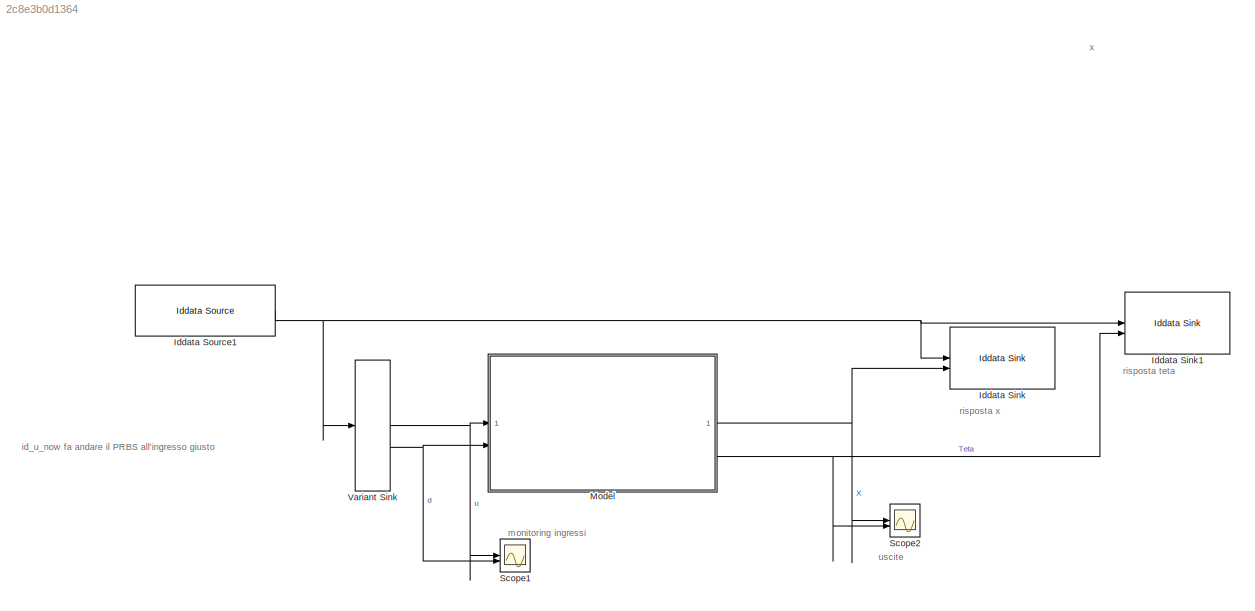
MODEL slx_2c8e3b0d1364
KIND model
CONFIG AbsTol = auto
CONFIG EnableMultiTasking = off
CONFIG FixedStep = auto
CONFIG MaxStep = auto
CONFIG MinStep = auto
CONFIG RelTol = 1e-3
CONFIG SampleTimeConstraint = Unconstrained
CONFIG SolverName = ode45
CONFIG StartTime = 0.0
CONFIG StopTime = 20
BLOCK [Reference] Iddata Sink  REF=slident/Iddata Sink  (lib defined in mdl_f7d4911ca73a)
  SourceBlock = slident/Iddata Sink
  SourceType = IDDATA Sink
BLOCK [Reference] Iddata Sink1  REF=slident/Iddata Sink  (lib defined in mdl_f7d4911ca73a)
  SourceBlock = slident/Iddata Sink
  SourceType = IDDATA Sink
BLOCK [Reference] Iddata Source1  REF=slident/Iddata Source  (lib defined in mdl_f7d4911ca73a)
  SourceBlock = slident/Iddata Source
  SourceType = Iddata InputOutput
BLOCK [ModelReference] Model
  ModelNameDialog = sistema_con_reazione_stato.slx
  ModelReferenceVersion = 9.55
BLOCK [Scope] Scope1
  ActiveDisplayString = 2
  ActiveDisplayYMaximum = 1.25
  ActiveDisplayYMinimum = -1.25
  DataLoggingVariableName = ScopeData1
  Floating = off
  GraphicalSettings = {"AxesScalingProperties":{"AlignXAxis":"Center","AlignYAxis":"Center","AutoScaleXAxisLimits":false,"AxesScaling":"Manual","AxesScalingNumUpdates":10,"ExpandOnly":true,"ScaleAxesLimitsAtStop":false,"XAxisDataRange":100,"YAxisDataRange":80},"DisplayProperties":{"ColorOrder":["auto","auto","auto","auto","auto","auto","auto","auto","auto","auto","auto","auto","auto","auto","auto","auto","auto","auto",...<+2247ch>
  LayoutDimensionsString = [2, 1]
  MultipleDisplayCache = [{"MaxYLimMag":1,"MaxYLimReal":1,"MinYLimMag":0,"MinYLimReal":-1,"PlotAsMagnitudePhase":false,"ShowGrid":true,"ShowLegend":true,"Title":"%<SignalLabel>","YLabel":""},{"MaxYLimMag":1.25,"MaxYLimReal":1.25,"MinYLimMag":0,"MinYLimReal":-1.25,"PlotAsMagnitudePhase":false,"ShowGrid":true,"ShowLegend":true,"Title":"%<SignalLabel>","YLabel":""}]
  NumInputPorts = 2
  ScopeFrameLocation = window
  ShowLegend = on
  WasSavedAsWebScope = on
  WindowPosition = [403.000000,285.000000,560.000000,420.000000,]
BLOCK [Scope] Scope2
  ActiveDisplayString = 2
  ActiveDisplayYMaximum = 0.044991800627960682
  ActiveDisplayYMinimum = -0.060113003787620641
  DataLoggingVariableName = ScopeData2
  Floating = off
  GraphicalSettings = {"Style":{"BackgroundColor":[0.12941176470588237,0.12941176470588237,0.12941176470588237],"AxesColor":[0.07058823529411765,0.07058823529411765,0.07058823529411765],"LabelsColor":[0.8509803921568627,0.8509803921568627,0.8509803921568627],"PreserveColors":false,"Visible":[true,true],"LineStyle":["-","-"],"LineWidth":[1.5,1.5],"BarWidth":[0.9,0.9],"LineColor":[[1,0,0],"auto"],"LineFaceAlpha":[1,1],"L...<+2382ch>
  LayoutDimensionsString = [2, 1]
  MultipleDisplayCache = [{"MaxYLimMag":0.65164341432061157,"MaxYLimReal":0.29877975468382745,"MinYLimMag":0,"MinYLimReal":-0.65164341432061157,"PlotAsMagnitudePhase":false,"ShowGrid":true,"ShowLegend":true,"Title":"%<SignalLabel>","YLabel":""},{"MaxYLimMag":0.060113003787620641,"MaxYLimReal":0.044991800627960682,"MinYLimMag":0,"MinYLimReal":-0.060113003787620641,"PlotAsMagnitudePhase":false,"ShowGrid":true,"ShowLegend":t...<+42ch>
  NumInputPorts = 2
  ScopeFrameLocation = window
  ShowLegend = on
  WasSavedAsWebScope = on
  WindowPosition = [67.000000,38.000000,1300.000000,699.000000,]
BLOCK [VariantSink] Variant Sink
ANNOTATION (root): id_u_now fa andare il PRBS all'ingresso giusto
ANNOTATION (root): monitoring ingressi
ANNOTATION (root): risposta teta
ANNOTATION (root): risposta x
ANNOTATION (root): uscite
ANNOTATION (root): x
NET Iddata Source1:1 -> Iddata Sink1:1, Iddata Sink:1, Variant Sink:1
NET Model:1 -> Iddata Sink:2, Scope2:1
NET Model:3 -> Iddata Sink1:2, Scope2:2
NET Variant Sink:1 -> Model:1, Scope1:1
NET Variant Sink:2 -> Model:2, Scope1:2
note: NET lines group one-source signal fan-out (src -> all destinations, sorted); 1:1 wires keep LINE
